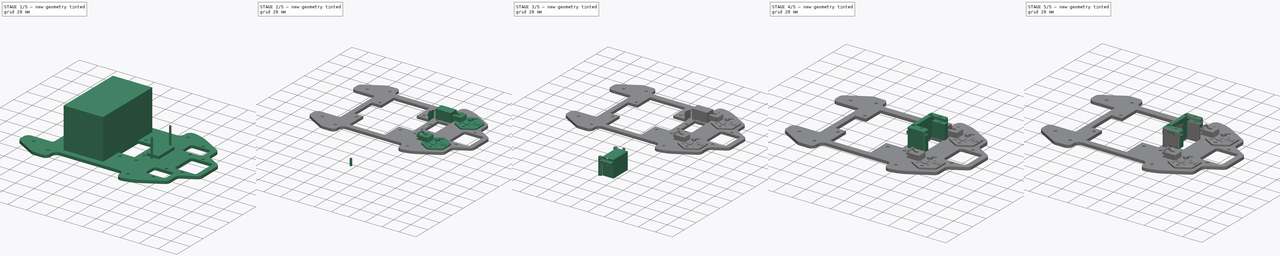
[diagram: build sequence overview — one tinted view per stage of 5, left to right]
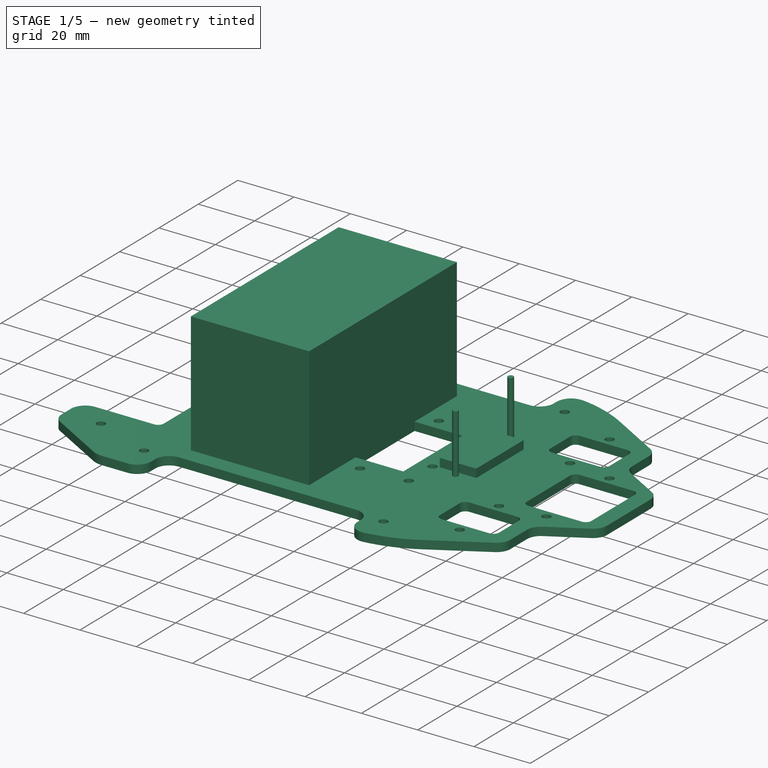
[diagram: stage 1 of 5 — iso view after this stage's code; geometry added in this stage tinted green]
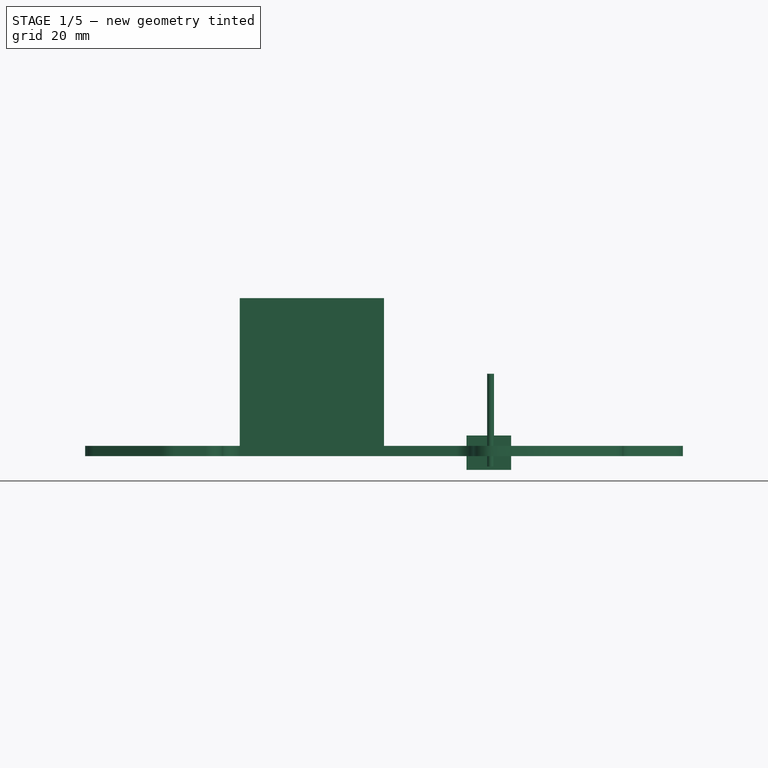
[diagram: stage 1 of 5 — front view after this stage's code; geometry added in this stage tinted green]
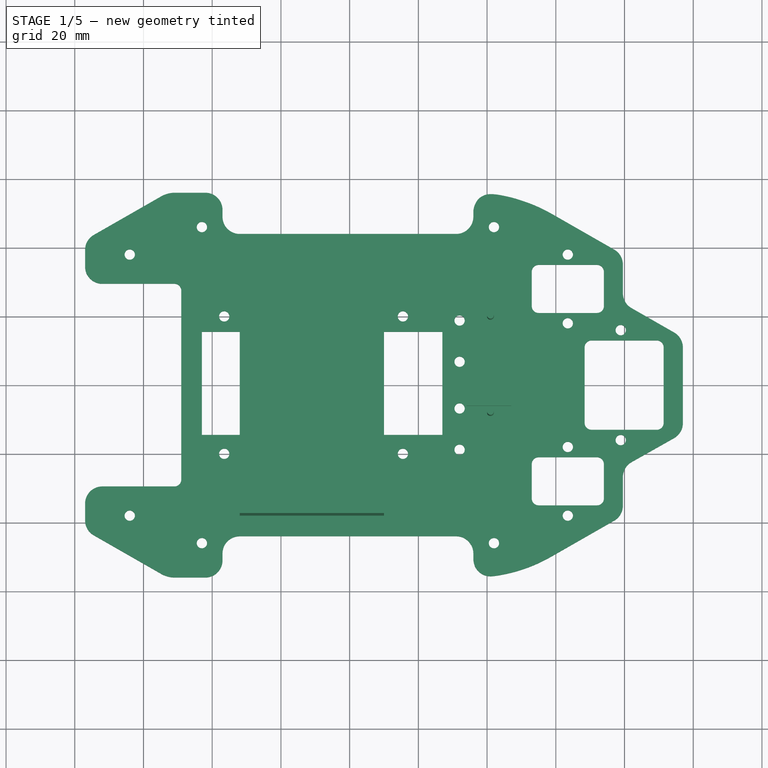
[diagram: stage 1 of 5 — top view after this stage's code; geometry added in this stage tinted green]
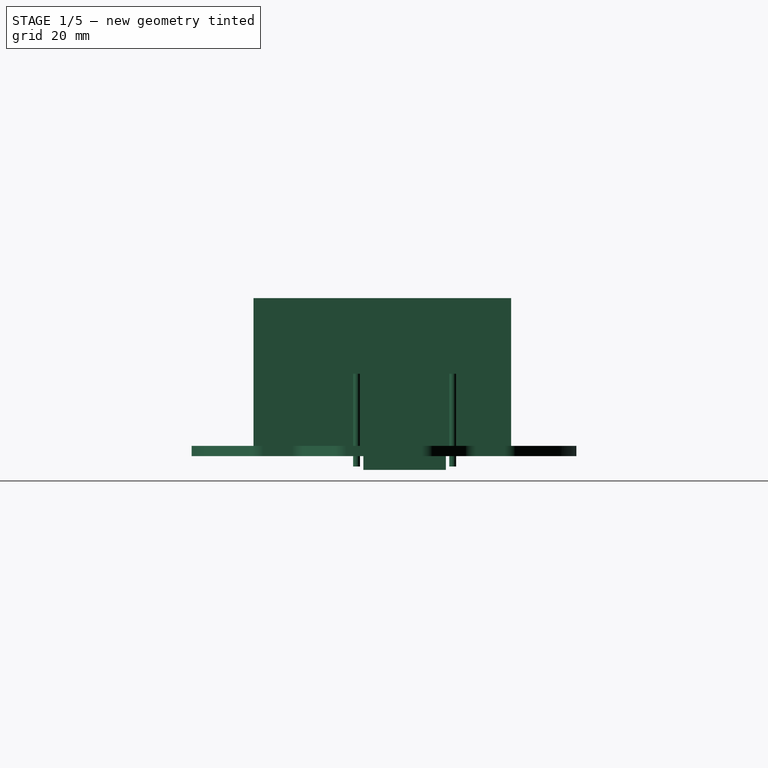
[diagram: stage 1 of 5 — right view after this stage's code; geometry added in this stage tinted green]
FCSTD DOCUMENT  (FreeCAD 0.16R6692 (Git))
Label: Base y cuerpo cortados MiniServo
License: All rights reserved
LicenseURL: http://es.wikipedia.org/wiki/Todos_los_derechos_reservados
objects: Part::Feature×31, Part::Box×9, Part::Cut×9, Part::Cylinder×6, Part::MultiFuse×6, Sketcher::SketchObject×3, Part::Fillet×2, PartDesign::Pocket×2, App::DocumentObjectGroup×2, PartDesign::Pad×1
note: 72 computed .brp shape members not serialized (recipe doc carries the construction recipe); baked Part::Feature solids carry a one-line shape summary decoded from their .brp

FEATURE [Part::Feature] Part__Feature210  label="BASE_FINAL"
  shape: bbox 217.5 x 140 x 48.35 mm, 110 faces (baked)
FEATURE [Part::Box] Box  label="Cubo Y corte base"
  Height = 46
  Length = 42
  Placement = pos=(-12,-38,0) rot=(0,0,1;0rad)
  Width = 75
FEATURE [Part::Box] Box005  label="Cubo X corte base"
  Height = 49
  Length = 70
  Placement = pos=(-23,-14.5,0) rot=(0,0,1;0rad)
  Width = 30
FEATURE [Part::Cut] Cut  label="base"
  Base = -> Part__Feature210
  Tool = -> Box005
FEATURE [Part::Box] Box040  label="Cubo"
  Height = 10
  Length = 13
  Placement = pos=(54,-6,-4) rot=(0,0,1;0rad)
  Width = 24
FEATURE [Part::Cylinder] Cylinder  label="Cilindro"
  Angle = 360
  Height = 27
  Placement = pos=(61,20,-3) rot=(0,0,1;0rad)
  Radius = 1
FEATURE [App::DocumentObjectGroup] Grupo  label="Servo"
  Group = -> [Cut056]
FEATURE [Part::Cylinder] Cylinder038  label="Cilindro001"
  Angle = 360
  Height = 27
  Placement = pos=(61,-8,-3) rot=(0,0,1;0rad)
  Radius = 1
FEATURE [Part::MultiFuse] Fusion  label="HuecoMiniServo"
  Shapes = -> [Cylinder038,Box040,Cylinder]
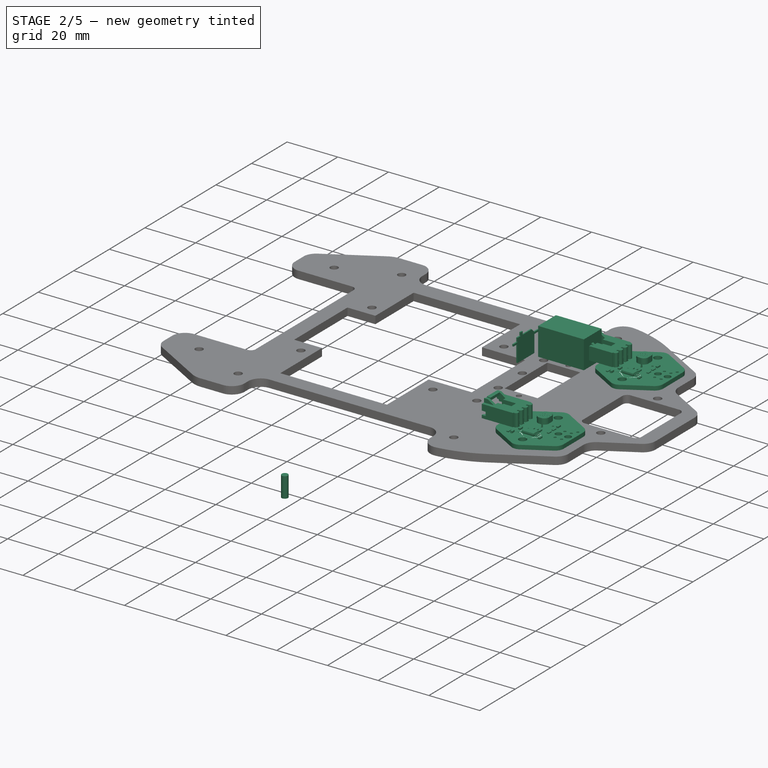
[diagram: stage 2 of 5 — iso view after this stage's code; geometry added in this stage tinted green]
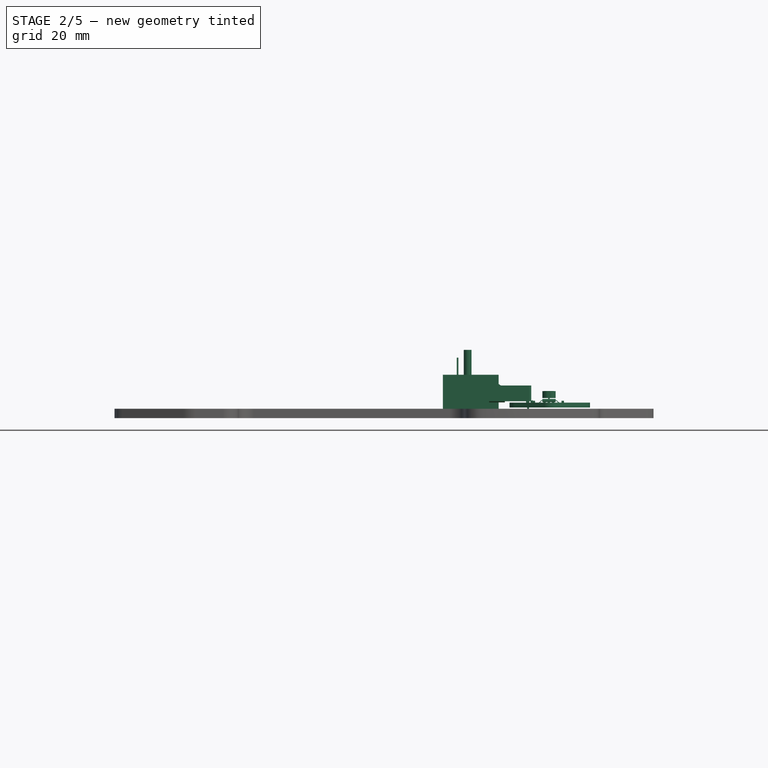
[diagram: stage 2 of 5 — front view after this stage's code; geometry added in this stage tinted green]
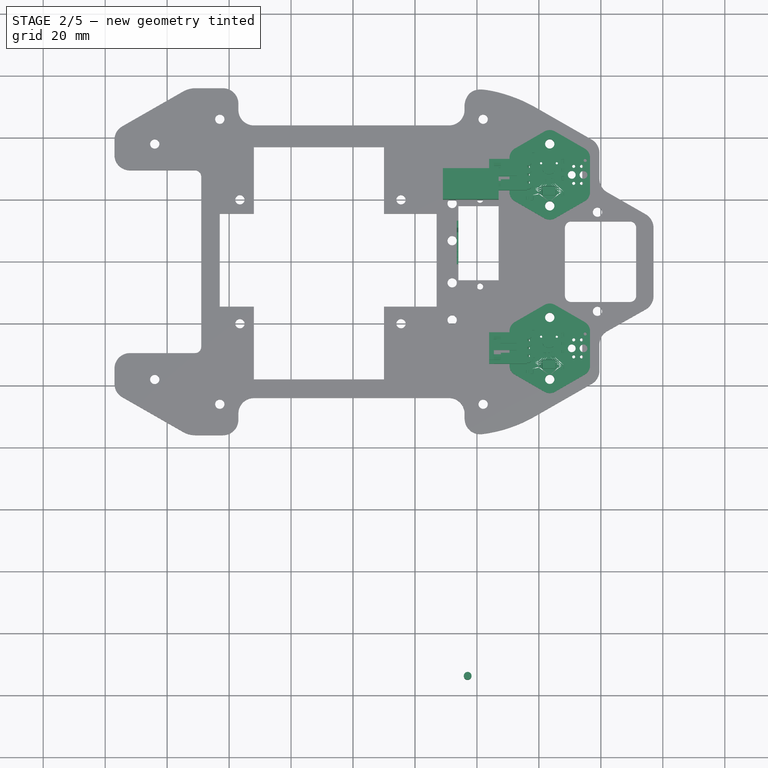
[diagram: stage 2 of 5 — top view after this stage's code; geometry added in this stage tinted green]
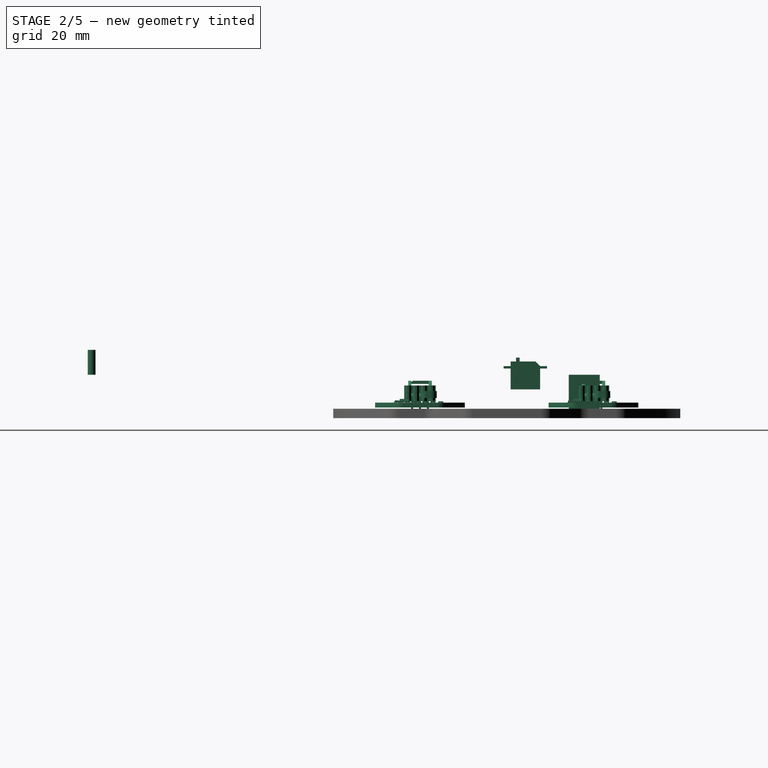
[diagram: stage 2 of 5 — right view after this stage's code; geometry added in this stage tinted green]
FEATURE [Part::Cut] Cut048016002  label="Base Cortada"
  Base = -> Cut
  Tool = -> Box
FEATURE [Part::Cylinder] Cylinder037  label="Taladro_Miniservo_1"
  Angle = 360
  Height = 8
  Placement = pos=(57,-134,14) rot=(0,0,1;0rad)
  Radius = 1.25
FEATURE [Part::Box] Box039  label="Hueco_Conector_Miniservo"
  Height = 11
  Length = 18
  Placement = pos=(49,20,3) rot=(0,0,1;0rad)
  Width = 10
FEATURE [Sketcher::SketchObject] Sketch046  label="servo-doc-sketch002"
  Placement = pos=(53.5,6,2.5) rot=(0.57735,0.57735,0.57735;2.0944rad)
  sketch-geometry (16):
    g0: LineSegment StartX=4.75 StartY=6.75 StartZ=0 EndX=-4.75 EndY=6.75 EndZ=0
    g1: LineSegment StartX=-4.75 StartY=6.75 StartZ=0 EndX=-4.75 EndY=13.5 EndZ=0
    g2: LineSegment StartX=-4.75 StartY=13.5 StartZ=0 EndX=-7 EndY=13.5 EndZ=0
    g3: LineSegment StartX=-7 StartY=13.5 StartZ=0 EndX=-7 EndY=14.25 EndZ=0
    g4: LineSegment StartX=-3 StartY=15.75 StartZ=0 EndX=-3 EndY=17 EndZ=0
    g5: LineSegment StartX=-3 StartY=17 StartZ=0 EndX=-1.85 EndY=17 EndZ=0
    g6: LineSegment StartX=-1.85 StartY=17 StartZ=0 EndX=-1.85 EndY=15.75 EndZ=0
    g7: LineSegment StartX=-1.85 StartY=15.75 StartZ=0 EndX=3.25 EndY=15.75 EndZ=0
    g8: LineSegment StartX=3.25 StartY=15.75 StartZ=0 EndX=4.75 EndY=14.25 EndZ=0
    g9: LineSegment StartX=4.75 StartY=14.25 StartZ=0 EndX=7 EndY=14.25 EndZ=0
    g10: LineSegment StartX=7 StartY=14.25 StartZ=0 EndX=7 EndY=13.5 EndZ=0
    g11: LineSegment StartX=7 StartY=13.5 StartZ=0 EndX=4.75 EndY=13.5 EndZ=0
    g12: LineSegment StartX=4.75 StartY=13.5 StartZ=0 EndX=4.75 EndY=6.75 EndZ=0
    g13: LineSegment StartX=-7 StartY=14.25 StartZ=0 EndX=-4.75 EndY=14.25 EndZ=0
    g14: LineSegment StartX=-4.75 StartY=14.25 StartZ=0 EndX=-4.75 EndY=15.75 EndZ=0
    g15: LineSegment StartX=-4.75 StartY=15.75 StartZ=0 EndX=-3 EndY=15.75 EndZ=0
  constraints (47):
    c: Horizontal(g0)
    c: Coincident(g0,g1)
    c: Vertical(g1)
    c: Coincident(g1,g2)
    c: Horizontal(g2)
    c: Coincident(g2,g3)
    c: Coincident(g4,g5)
    c: Horizontal(g5)
    c: Coincident(g5,g6)
    c: Vertical(g6)
    c: Coincident(g6,g7)
    c: Horizontal(g7)
    c: Coincident(g7,g8)
    c: Coincident(g8,g9)
    c: Horizontal(g9)
    c: Coincident(g9,g10)
    c: Coincident(g10,g11)
    c: Horizontal(g11)
    c: Coincident(g11,g12)
    c: Coincident(g12,g0)
    c: Vertical(g12)
    c: Symmetric(g0,g0,g-2)
    c: Vertical(g3)
    c: Coincident(g3,g13)
    c: Horizontal(g13)
    c: Coincident(g13,g14)
    c: Coincident(g14,g15)
    c: Coincident(g15,g4)
    c: Horizontal(g15)
    c: Symmetric(g1,g11,g-2)
    c: Symmetric(g3,g9,g-2)
    c: PointOnObject(g4,g7)
    c: Vertical(g4)
    c: Vertical(g14)
    c: PointOnObject(g13,g1)
    c: PointOnObject(g8,g12)
    c: Vertical(g10)
    c: Angle(g8,g-1) = 0.785398
    c: DistanceX(g0) = -9.5
    c: DistanceY(g14,g0) = -9
    c: DistanceY(g14) = 1.5
    c: DistanceX(g2) = -2.25
    c: DistanceY(g3) = 0.75
    c: DistanceY(g6) = -1.25
    c: DistanceX(g5) = 1.15
    c: DistanceX(g15) = 1.75
    c: DistanceY(g-1,g0) = 6.75
FEATURE [PartDesign::Pad] Pad015
  Length = 0.5
  Length2 = 100
  Placement = pos=(53.5,6,2.5) rot=(0.57735,0.57735,0.57735;2.0944rad)
  Sketch = -> Sketch046
  Type = 0
FEATURE [Part::Feature] Part__Feature149  label="R6bqZUM_bloqs_Light002"
  Placement = pos=(1.91,-1.7,0) rot=(0,0,1;3.14159rad)
  shape: bbox 1.6 x 0.8 x 0.4 mm, 36 faces (baked)
FEATURE [Part::Feature] Part__Feature150  label="RfbbqZUM_bloqs_Light002"
  Placement = pos=(7.49,-7.22,0) rot=(0,0,1;0rad)
  shape: bbox 1.6 x 0.8 x 0.4 mm, 36 faces (baked)
FEATURE [Part::Feature] Part__Feature151  label="J1bqZUM_bloqs_Light002"
  Placement = pos=(-4.08502e-05,-19.573,2.98) rot=(1,0,0;1.5708rad)
  shape: bbox 10.16 x 13.59 x 10.29 mm, 129 faces (baked)
FEATURE [Part::Feature] Part__Feature152  label="R2bqZUM_bloqs_Light002"
  Placement = pos=(-1.59,4.2,0) rot=(0,0,1;3.14159rad)
  shape: bbox 1.6 x 0.8 x 0.4 mm, 36 faces (baked)
FEATURE [Part::Feature] Part__Feature153  label="R8bqZUM_bloqs_Light"
  Placement = pos=(-8.39353,3.11612,1.5) rot=(0,0,1;3.14159rad)
  shape: bbox 5.212 x 4.302 x 4.742 mm, 74 faces (baked)
FEATURE [Part::Feature] Part__Feature154  label="C4bqZUM_bloqs_Light002"
  Placement = pos=(6.21,4.2,0) rot=(0,0,1;3.14159rad)
  shape: bbox 1.6 x 0.8 x 0.6 mm, 44 faces (baked)
FEATURE [Part::Feature] Part__Feature155  label="U2bqZUM_bloqs_Light002"
  Placement = pos=(5.10492,-0.244957,0) rot=(0.57735,0.57735,0.57735;2.0944rad)
  shape: bbox 3 x 6.456 x 1.2 mm, 129 faces (baked)
FEATURE [Part::Feature] Part__Feature156  label="R5bqZUM_bloqs_Light002"
  Placement = pos=(1.01,4.2,0) rot=(0,0,1;3.14159rad)
  shape: bbox 1.6 x 0.8 x 0.4 mm, 36 faces (baked)
FEATURE [Part::Feature] Part__Feature157  label="C3bqZUM_bloqs_Light002"
  Placement = pos=(1.91,1.1,0) rot=(0,0,1;3.14159rad)
  shape: bbox 1.6 x 0.8 x 0.6 mm, 44 faces (baked)
FEATURE [Part::Feature] Part__Feature158  label="C2bqZUM_bloqs_Light002"
  Placement = pos=(-4.21,4.2,0) rot=(0,0,1;0rad)
  shape: bbox 1.6 x 0.8 x 0.6 mm, 44 faces (baked)
FEATURE [Part::Feature] Part__Feature159  label="R7bqZUM_bloqs_Light002"
  Placement = pos=(1.91,-0.3,0) rot=(0,0,1;3.14159rad)
  shape: bbox 1.6 x 0.8 x 0.4 mm, 36 faces (baked)
FEATURE [Part::Feature] Part__Feature160  label="PCB005"
  Placement = pos=(0,0,-1.6) rot=(0,0,1;0rad)
  shape: bbox 28.95 x 26.02 x 1.6 mm, 83 faces (baked)
FEATURE [Part::Feature] Part__Feature161  label="C1bqZUM_bloqs_Light002"
  Placement = pos=(3.91,-5.1,0) rot=(0,0,1;3.14159rad)
  shape: bbox 1.6 x 0.8 x 0.6 mm, 44 faces (baked)
FEATURE [Part::Feature] Part__Feature162  label="D2bqZUM_bloqs_Light002"
  Placement = pos=(7.50008,-5.79987,0) rot=(0,0,1;3.14159rad)
  shape: bbox 1.83 x 0.8489 x 0.71 mm, 32 faces (baked)
FEATURE [Part::Feature] Part__Feature163  label="R9bqZUM_bloqs_Light002"
  Placement = pos=(-6.69,-5.3,0) rot=(0,0,1;3.14159rad)
  shape: bbox 1.6 x 0.8 x 0.4 mm, 36 faces (baked)
FEATURE [Part::MultiFuse] Fusion028  label="Sensor_LDR1"
  Placement = pos=(83.5,-28,5) rot=(0,0,-1;1.5708rad)
  Shapes = -> [Part__Feature160,Part__Feature156,Part__Feature153,Part__Feature159,Part__Feature152,Part__Feature161,Part__Feature162,Part__Feature163,Part__Feature155,Part__Feature149,Part__Feature154,Part__Feature158,Part__Feature151,Part__Feature157,Part__Feature150]
FEATURE [Part::Feature] Part__Feature164  label="J1bqZUM_bloqs_Light003"
  Placement = pos=(-4.08502e-05,-19.573,2.98) rot=(1,0,0;1.5708rad)
  shape: bbox 10.16 x 13.59 x 10.29 mm, 129 faces (baked)
FEATURE [Part::Feature] Part__Feature165  label="R2bqZUM_bloqs_Light003"
  Placement = pos=(-1.59,4.2,0) rot=(0,0,1;3.14159rad)
  shape: bbox 1.6 x 0.8 x 0.4 mm, 36 faces (baked)
FEATURE [Part::Feature] Part__Feature166  label="R8bqZUM_bloqs_Light001"
  Placement = pos=(-8.39353,3.11612,1.5) rot=(0,0,1;3.14159rad)
  shape: bbox 5.212 x 4.302 x 4.742 mm, 74 faces (baked)
FEATURE [Part::Feature] Part__Feature167  label="C1bqZUM_bloqs_Light003"
  Placement = pos=(3.91,-5.1,0) rot=(0,0,1;3.14159rad)
  shape: bbox 1.6 x 0.8 x 0.6 mm, 44 faces (baked)
FEATURE [Part::Feature] Part__Feature168  label="RfbbqZUM_bloqs_Light003"
  Placement = pos=(7.49,-7.22,0) rot=(0,0,1;0rad)
  shape: bbox 1.6 x 0.8 x 0.4 mm, 36 faces (baked)
FEATURE [Part::Feature] Part__Feature169  label="C2bqZUM_bloqs_Light003"
  Placement = pos=(-4.21,4.2,0) rot=(0,0,1;0rad)
  shape: bbox 1.6 x 0.8 x 0.6 mm, 44 faces (baked)
FEATURE [Part::Feature] Part__Feature170  label="PCB006"
  Placement = pos=(0,0,-1.6) rot=(0,0,1;0rad)
  shape: bbox 28.95 x 26.02 x 1.6 mm, 83 faces (baked)
FEATURE [Part::Feature] Part__Feature171  label="R7bqZUM_bloqs_Light003"
  Placement = pos=(1.91,-0.3,0) rot=(0,0,1;3.14159rad)
  shape: bbox 1.6 x 0.8 x 0.4 mm, 36 faces (baked)
FEATURE [Part::Feature] Part__Feature172  label="R5bqZUM_bloqs_Light003"
  Placement = pos=(1.01,4.2,0) rot=(0,0,1;3.14159rad)
  shape: bbox 1.6 x 0.8 x 0.4 mm, 36 faces (baked)
FEATURE [Part::Feature] Part__Feature173  label="C4bqZUM_bloqs_Light003"
  Placement = pos=(6.21,4.2,0) rot=(0,0,1;3.14159rad)
  shape: bbox 1.6 x 0.8 x 0.6 mm, 44 faces (baked)
FEATURE [Part::Feature] Part__Feature174  label="R6bqZUM_bloqs_Light003"
  Placement = pos=(1.91,-1.7,0) rot=(0,0,1;3.14159rad)
  shape: bbox 1.6 x 0.8 x 0.4 mm, 36 faces (baked)
FEATURE [Part::Feature] Part__Feature175  label="U2bqZUM_bloqs_Light003"
  Placement = pos=(5.10492,-0.244957,0) rot=(0.57735,0.57735,0.57735;2.0944rad)
  shape: bbox 3 x 6.456 x 1.2 mm, 129 faces (baked)
FEATURE [Part::Feature] Part__Feature176  label="R9bqZUM_bloqs_Light003"
  Placement = pos=(-6.69,-5.3,0) rot=(0,0,1;3.14159rad)
  shape: bbox 1.6 x 0.8 x 0.4 mm, 36 faces (baked)
FEATURE [Part::Feature] Part__Feature177  label="C3bqZUM_bloqs_Light003"
  Placement = pos=(1.91,1.1,0) rot=(0,0,1;3.14159rad)
  shape: bbox 1.6 x 0.8 x 0.6 mm, 44 faces (baked)
FEATURE [Part::Feature] Part__Feature178  label="D2bqZUM_bloqs_Light003"
  Placement = pos=(7.50008,-5.79987,0) rot=(0,0,1;3.14159rad)
  shape: bbox 1.83 x 0.8489 x 0.71 mm, 32 faces (baked)
FEATURE [Part::MultiFuse] Fusion029  label="Sensor_LDR2"
  Placement = pos=(83.5,28,5) rot=(0,0,-1;1.5708rad)
  Shapes = -> [Part__Feature170,Part__Feature172,Part__Feature166,Part__Feature171,Part__Feature165,Part__Feature167,Part__Feature178,Part__Feature176,Part__Feature175,Part__Feature174,Part__Feature173,Part__Feature169,Part__Feature164,Part__Feature177,Part__Feature168]
FEATURE [App::DocumentObjectGroup] Grupo001  label="Huecos LDR"
  Group = -> [Fusion029,Fusion028]
FEATURE [Part::Cut] Cut048016003  label="BaseCortadaHuecoServo"
  Base = -> Cut048016002
  Tool = -> Fusion
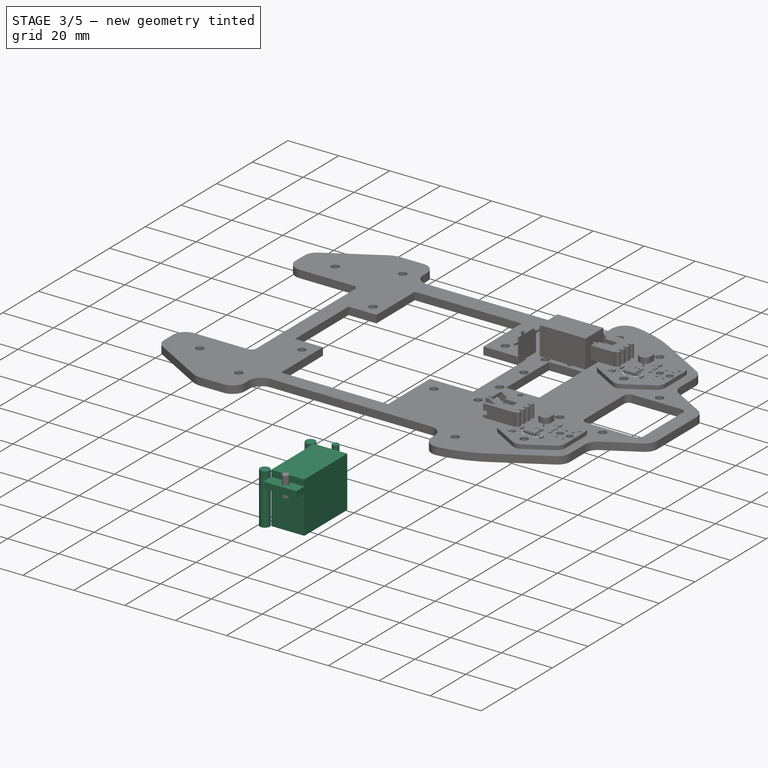
[diagram: stage 3 of 5 — iso view after this stage's code; geometry added in this stage tinted green]
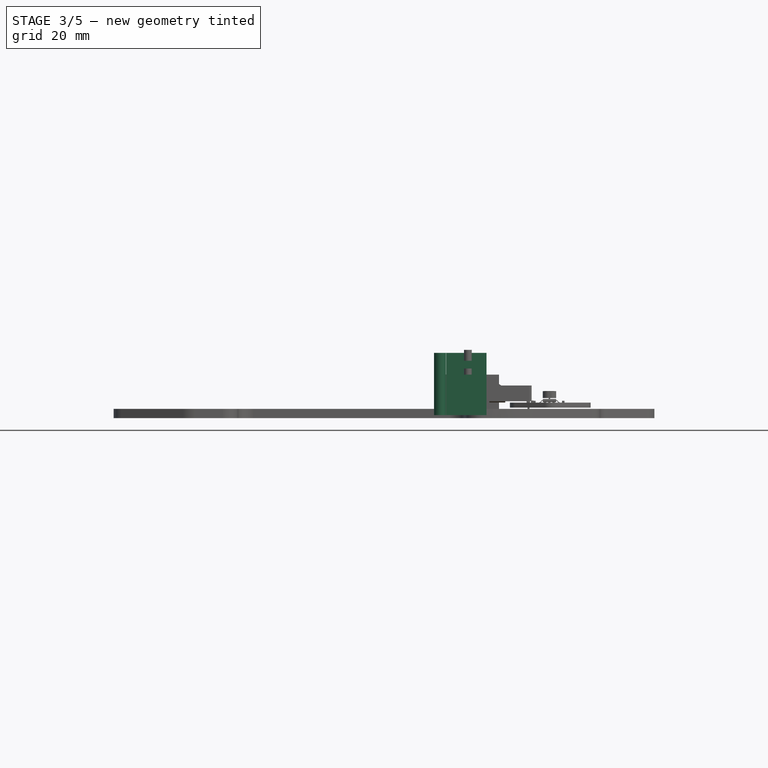
[diagram: stage 3 of 5 — front view after this stage's code; geometry added in this stage tinted green]
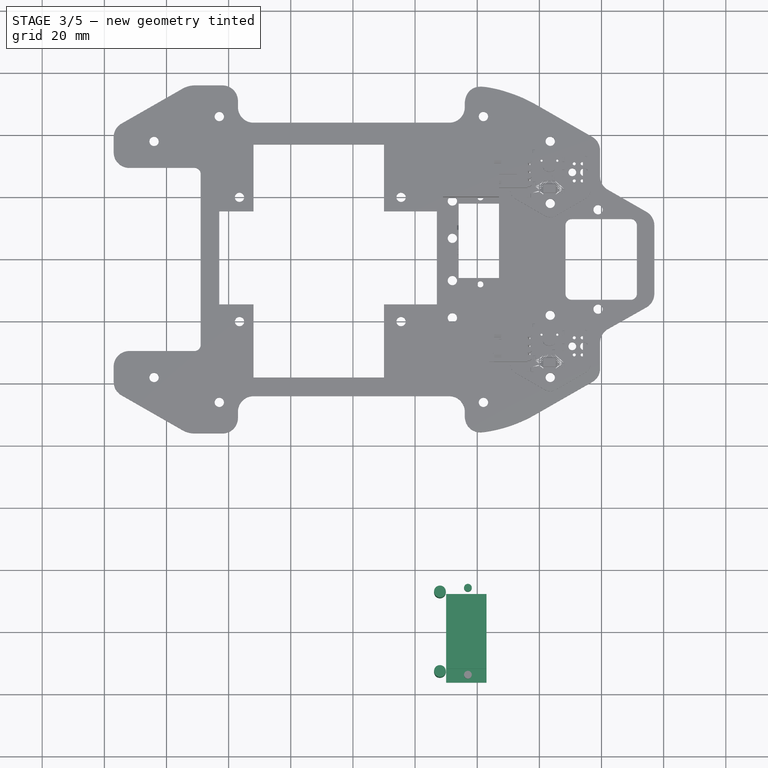
[diagram: stage 3 of 5 — top view after this stage's code; geometry added in this stage tinted green]
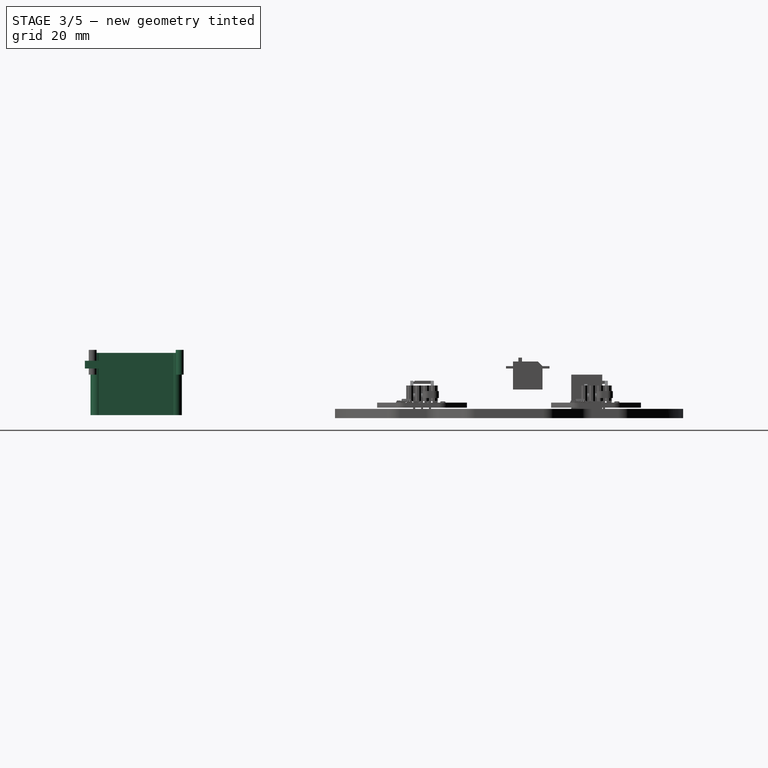
[diagram: stage 3 of 5 — right view after this stage's code; geometry added in this stage tinted green]
FEATURE [Part::Cylinder] Cylinder014  label="Orificio_tornilloM3_Miniservo_1"
  Angle = 360
  Height = 20
  Placement = pos=(48,-132.8,1) rot=(0,0,1;0rad)
  Radius = 1.9
FEATURE [Part::Cylinder] Cylinder015  label="Orificio_tornilloM3_Miniservo_2"
  Angle = 360
  Height = 20
  Placement = pos=(48,-107.2,1) rot=(0,0,1;0rad)
  Radius = 1.9
FEATURE [Part::Box] Box014  label="Brazo_Miniservo_1"
  Height = 2.5
  Length = 13
  Placement = pos=(50,-136.5,16) rot=(0,0,1;0rad)
  Width = 4.9
FEATURE [Part::Box] Box035  label="Hueco_Miniservo"
  Height = 20
  Length = 13
  Placement = pos=(50,-132.1,1) rot=(0,0,1;0rad)
  Width = 24.1
FEATURE [Part::MultiFuse] Fusion035  label="[Union]_Sujeta_miniservo_orificios_tornillos"
  Shapes = -> [Cylinder015,Cylinder014]
FEATURE [Part::Cylinder] Cylinder036  label="Taladro_Miniservo_2"
  Angle = 360
  Height = 8
  Placement = pos=(57,-106,14) rot=(0,0,1;0rad)
  Radius = 1.25
FEATURE [Part::MultiFuse] Fusion036  label="[Union]Sujeta_Miniservo_Taladros"
  Shapes = -> [Cylinder037,Cylinder036]
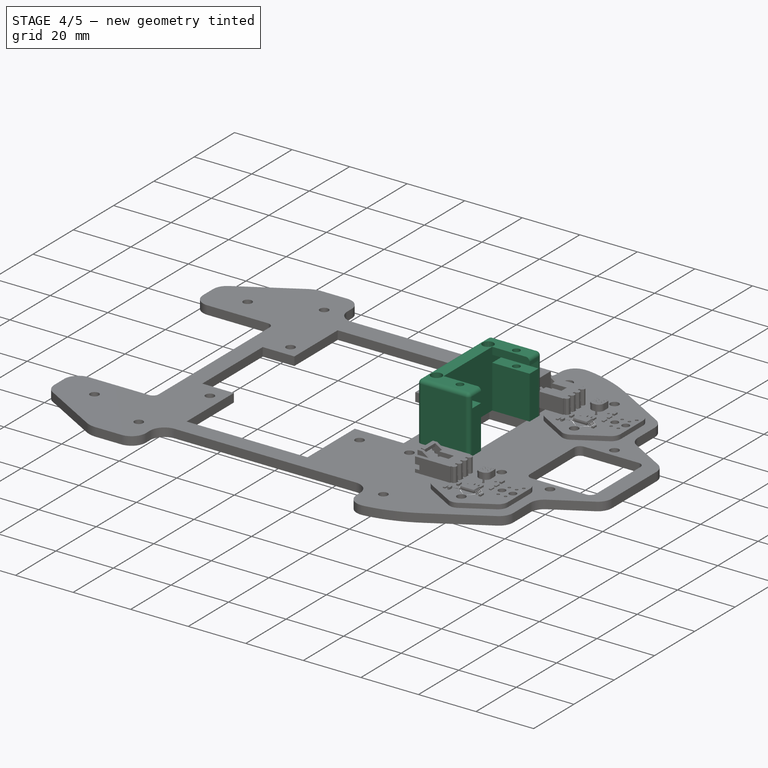
[diagram: stage 4 of 5 — iso view after this stage's code; geometry added in this stage tinted green]
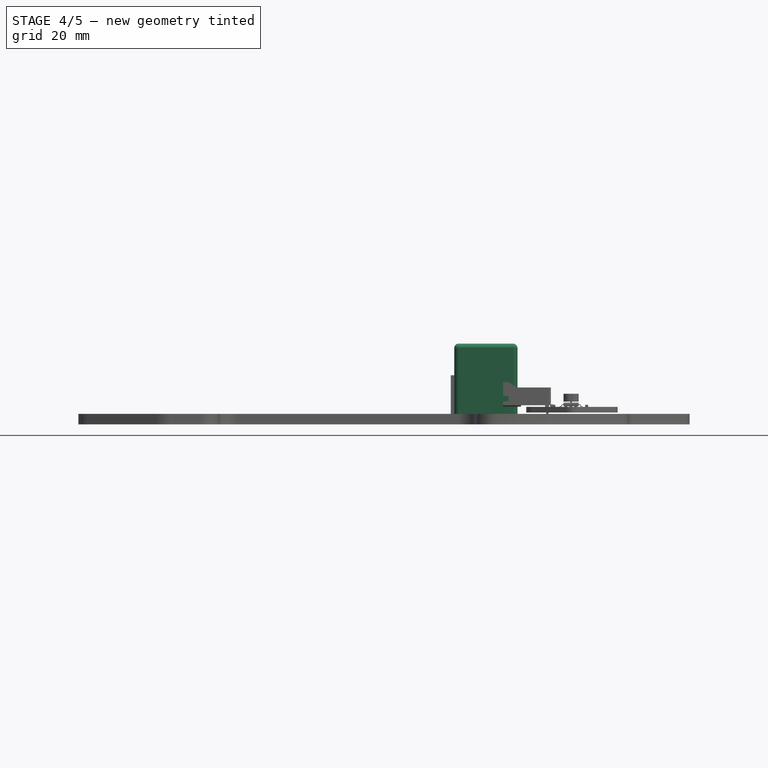
[diagram: stage 4 of 5 — front view after this stage's code; geometry added in this stage tinted green]
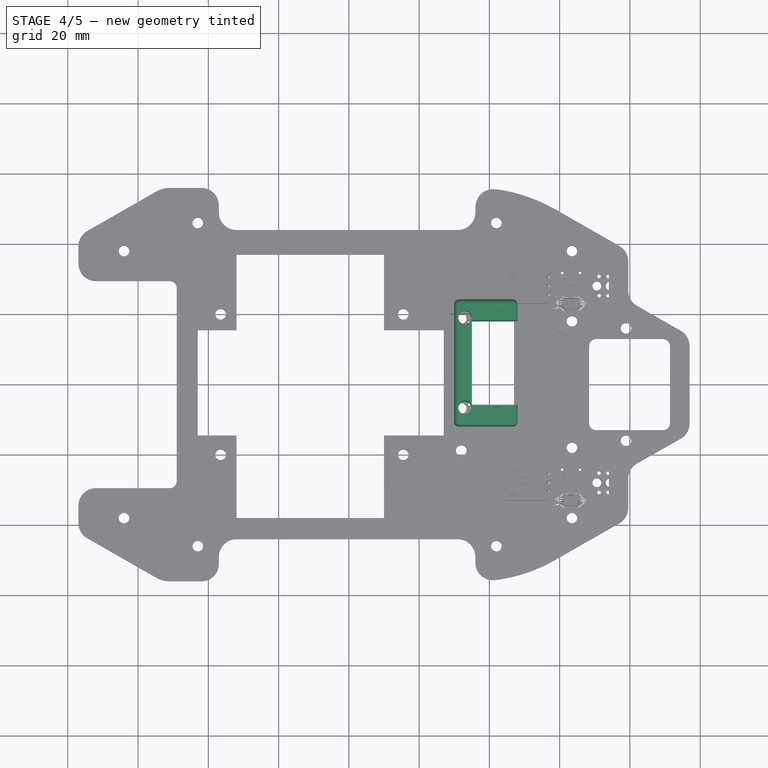
[diagram: stage 4 of 5 — top view after this stage's code; geometry added in this stage tinted green]
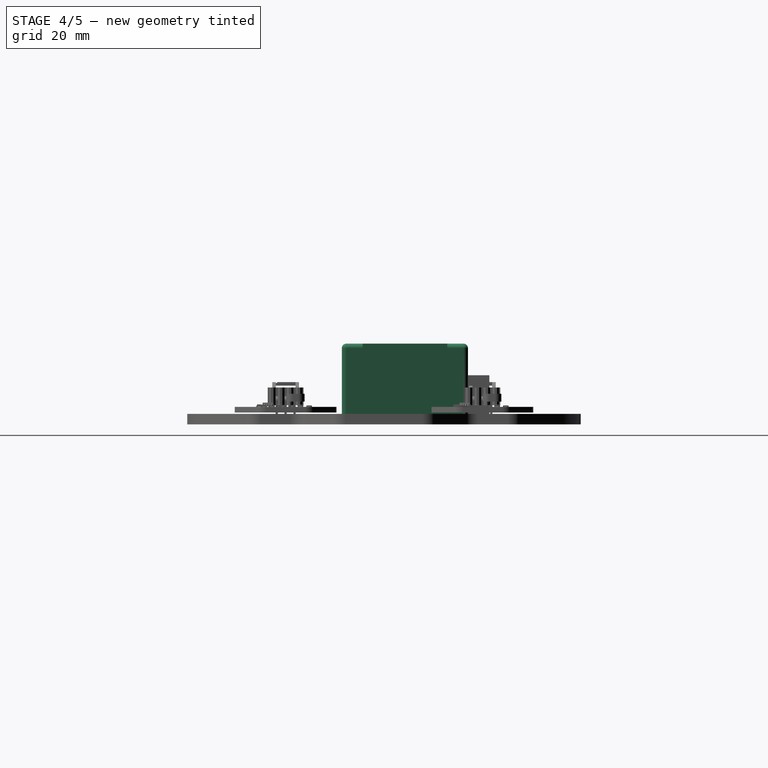
[diagram: stage 4 of 5 — right view after this stage's code; geometry added in this stage tinted green]
FEATURE [Part::Box] Box015  label="Brazo_Miniservo_2"
  Height = 2.5
  Length = 13
  Placement = pos=(50,-108.5,16) rot=(0,0,1;0rad)
  Width = 4.9
FEATURE [Part::Box] Box016  label="Sujeta_miniservo_cuerpo"
  Height = 20
  Length = 18
  Placement = pos=(45,-138,1) rot=(0,0,1;0rad)
  Width = 35.9
FEATURE [Part::MultiFuse] Fusion034  label="[Union]_Huecos_miniservo"
  Shapes = -> [Box014,Box015,Box035]
FEATURE [Part::Cut] Cut012  label="[Diferencia]Sujeta_Miniservo_Huecos"
  Base = -> Box016
  Tool = -> Fusion034
FEATURE [Part::Cut] Cut013  label="[Diferencia]_Sujeta_Miniservo_Tornillos"
  Base = -> Cut012
  Tool = -> Fusion035
FEATURE [Part::Cut] Cut016  label="[Diferencia]_Sujeta_Taladros"
  Base = -> Cut013
  Tool = -> Fusion036
FEATURE [Part::Fillet] Fillet008  label="[Redondeado]_Sujeta_Miniservo_Primer_Redondeo"
  Base = -> Cut016
  Edges = 9 edges r=1.3: [Edge1,Edge2,Edge3,Edge6,Edge7,Edge8,Edge9,Edge12,Edge19]
  Placement = pos=(5,126,2) rot=(0,0,1;0rad)
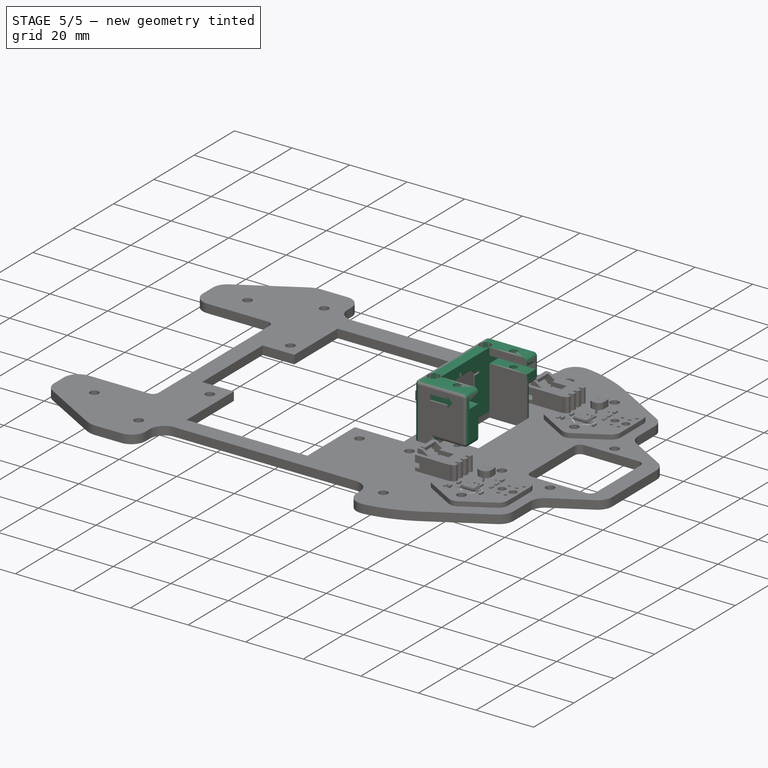
[diagram: stage 5 of 5 — iso view after this stage's code; geometry added in this stage tinted green]
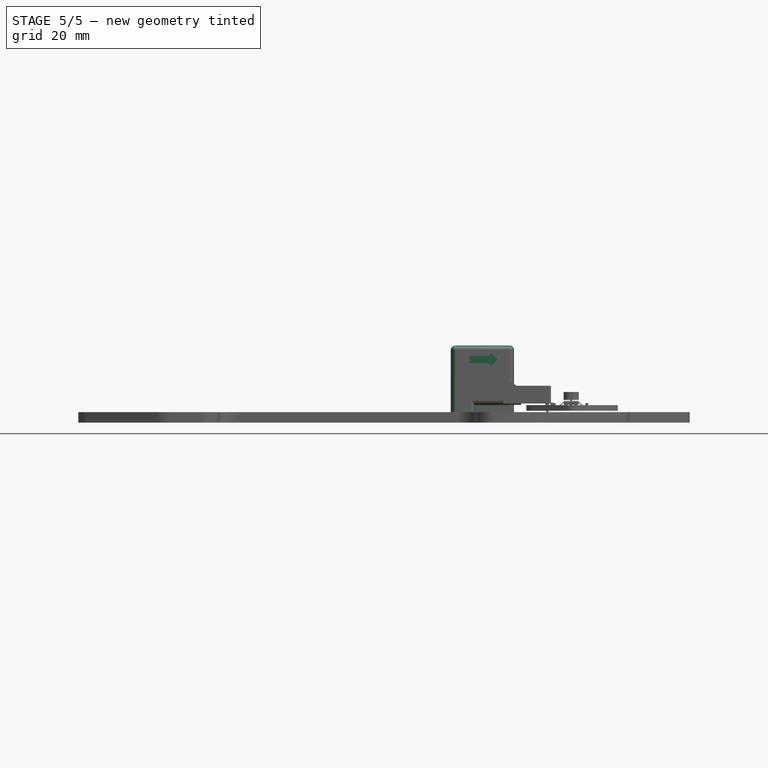
[diagram: stage 5 of 5 — front view after this stage's code; geometry added in this stage tinted green]
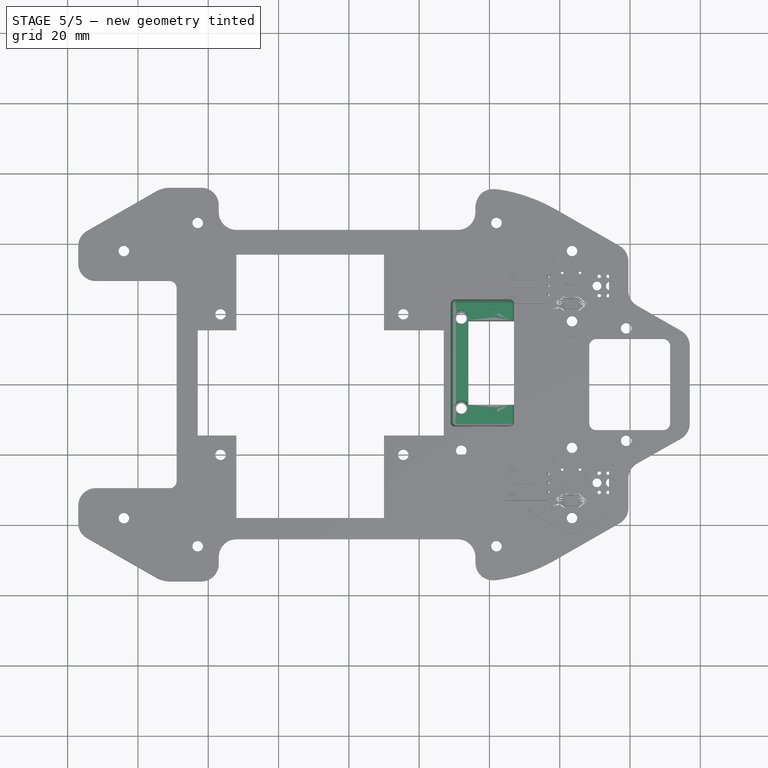
[diagram: stage 5 of 5 — top view after this stage's code; geometry added in this stage tinted green]
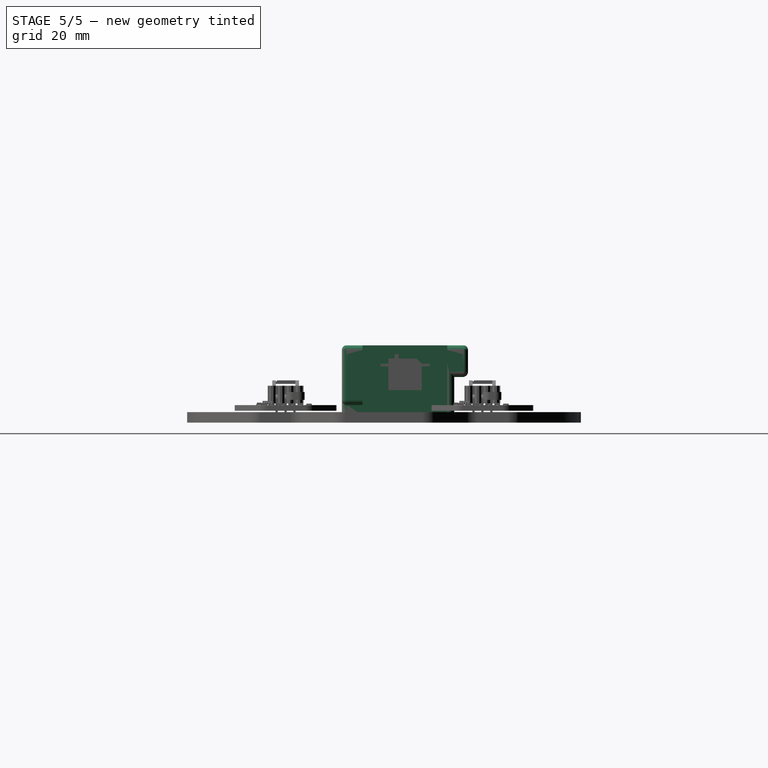
[diagram: stage 5 of 5 — right view after this stage's code; geometry added in this stage tinted green]
FEATURE [Part::Box] Box038  label="Hueco_Cables_Miniservo"
  Height = 10
  Length = 14
  Placement = pos=(57,-14,-4) rot=(0,0,1;0rad)
  Width = 10
FEATURE [Part::Cut] Cut017  label="[Diferencia]_Sujeta_Miniservo_Cables"
  Base = -> Fillet008
  Placement = pos=(-1,0,0) rot=(0,0,1;0rad)
  Tool = -> Box038
FEATURE [Part::Cut] Cut019  label="[Diferencia]_Sujeta_Hueco_Conector"
  Base = -> Cut017
  Tool = -> Box039
FEATURE [Part::Fillet] Fillet010  label="SUJETA_MINISERVO--[Redondeo]_Sujeta_Hueco_Conector"
  Base = -> Cut019
  Edges = 11 edges r=1.5: [Edge8,Edge9,Edge27,Edge28,Edge29,Edge30,Edge46,Edge47,Edge80,Edge97,Edge98]
  Placement = pos=(0,0,-1) rot=(0,0,1;0rad)
FEATURE [Sketcher::SketchObject] Sketch044
  ExternalGeometry = -> [Fillet010]
  Placement = pos=(0,-12,-1) rot=(1,0,0;1.5708rad)
  Support = -> Fillet010 [Face20]
  sketch-geometry (7):
    g0: LineSegment StartX=54.3 StartY=19.95 StartZ=0 EndX=54.3 EndY=17.95 EndZ=0
    g1: LineSegment StartX=54.3 StartY=17.95 StartZ=0 EndX=60.3 EndY=17.95 EndZ=0
    g2: LineSegment StartX=60.3 StartY=17.95 StartZ=0 EndX=60.3 EndY=16.95 EndZ=0
    g3: LineSegment StartX=60.3 StartY=16.95 StartZ=0 EndX=62.3 EndY=18.95 EndZ=0
    g4: LineSegment StartX=62.3 StartY=18.95 StartZ=0 EndX=60.3 EndY=20.95 EndZ=0
    g5: LineSegment StartX=60.3 StartY=20.95 StartZ=0 EndX=60.3 EndY=19.95 EndZ=0
    g6: LineSegment StartX=60.3 StartY=19.95 StartZ=0 EndX=54.3 EndY=19.95 EndZ=0
  constraints (21):
    c: Vertical(g0)
    c: Coincident(g0,g1)
    c: Horizontal(g1)
    c: Coincident(g1,g2)
    c: Vertical(g2)
    c: Coincident(g2,g3)
    c: Coincident(g3,g4)
    c: Coincident(g4,g5)
    c: Vertical(g5)
    c: Coincident(g5,g6)
    c: Coincident(g0,g6)
    c: Horizontal(g6)
    c: DistanceX(g6) = -6
    c: DistanceY(g0) = -2
    c: Equal(g4,g3)
    c: Equal(g5,g2)
    c: Equal(g1,g6)
    c: Angle(g4,g3) = 1.5708
    c: DistanceY(g2) = -1
    c: DistanceX(g-3,g0) = 4
    c: DistanceY(g-3,g0) = -1.75
FEATURE [PartDesign::Pocket] Pocket020
  Length = 0.5
  Placement = pos=(0,0,-1) rot=(0,0,1;0rad)
  Sketch = -> Sketch044
  Type = 0
FEATURE [Sketcher::SketchObject] Sketch045
  Placement = pos=(0,23.9,-1) rot=(0,0.707107,0.707107;3.14159rad)
  Support = -> Pocket020 [Face14]
  sketch-geometry (7):
    g0: LineSegment StartX=-60.3 StartY=19.95 StartZ=0 EndX=-54.3 EndY=19.95 EndZ=0
    g1: LineSegment StartX=-54.3 StartY=19.95 StartZ=0 EndX=-54.3 EndY=17.95 EndZ=0
    g2: LineSegment StartX=-54.3 StartY=17.95 StartZ=0 EndX=-60.3 EndY=17.95 EndZ=0
    g3: LineSegment StartX=-60.3 StartY=17.95 StartZ=0 EndX=-60.3 EndY=16.95 EndZ=0
    g4: LineSegment StartX=-60.3 StartY=16.95 StartZ=0 EndX=-62.3 EndY=18.95 EndZ=0
    g5: LineSegment StartX=-62.3 StartY=18.95 StartZ=0 EndX=-60.3 EndY=20.95 EndZ=0
    g6: LineSegment StartX=-60.3 StartY=20.95 StartZ=0 EndX=-60.3 EndY=19.95 EndZ=0
  constraints (19):
    c: Horizontal(g0)
    c: Coincident(g0,g1)
    c: Coincident(g1,g2)
    c: Horizontal(g2)
    c: Coincident(g2,g3)
    c: Coincident(g3,g4)
    c: Coincident(g4,g5)
    c: Coincident(g5,g6)
    c: Coincident(g6,g0)
    c: Equal(g5,g4)
    c: Angle(g4,g5) = 1.5708
    c: Vertical(g6)
    c: Vertical(g3)
    c: Equal(g2,g0)
    c: Vertical(g1)
    c: DistanceY(g6) = -1
    c: DistanceX(g0) = 6
    c: DistanceY(g1) = -2
    c: Equal(g3,g6)
FEATURE [PartDesign::Pocket] Pocket021  label="[Vaciado]Huella_flecha"
  Length = 0.5
  Placement = pos=(0,0,-1) rot=(0,0,1;0rad)
  Sketch = -> Sketch045
  Type = 0
FEATURE [Part::Cut] Cut056  label="SUJETA MINISERVO FINAL"
  Base = -> Pocket021
  Tool = -> Pad015
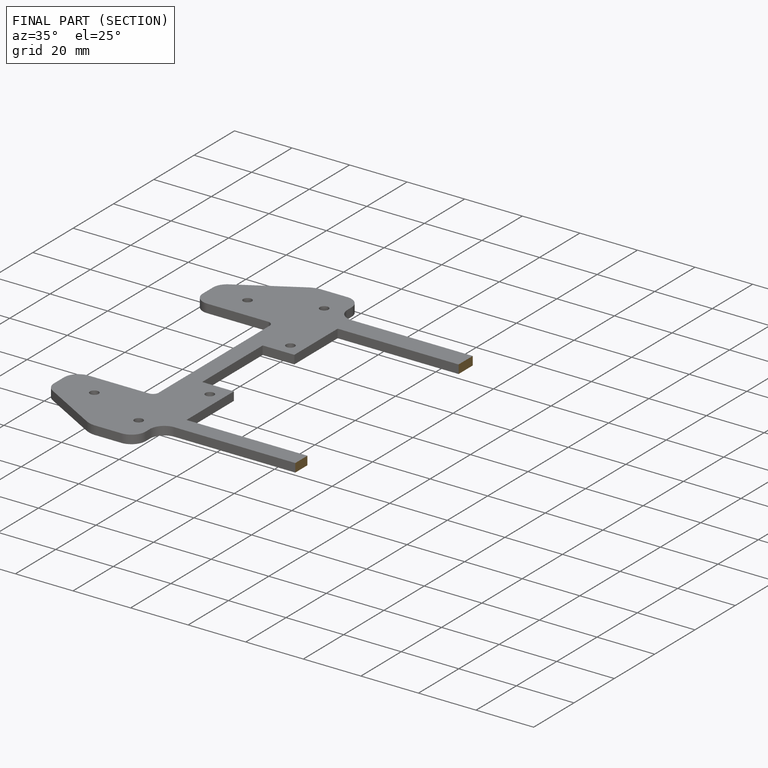
[diagram: finished part — half-section view (interior)]
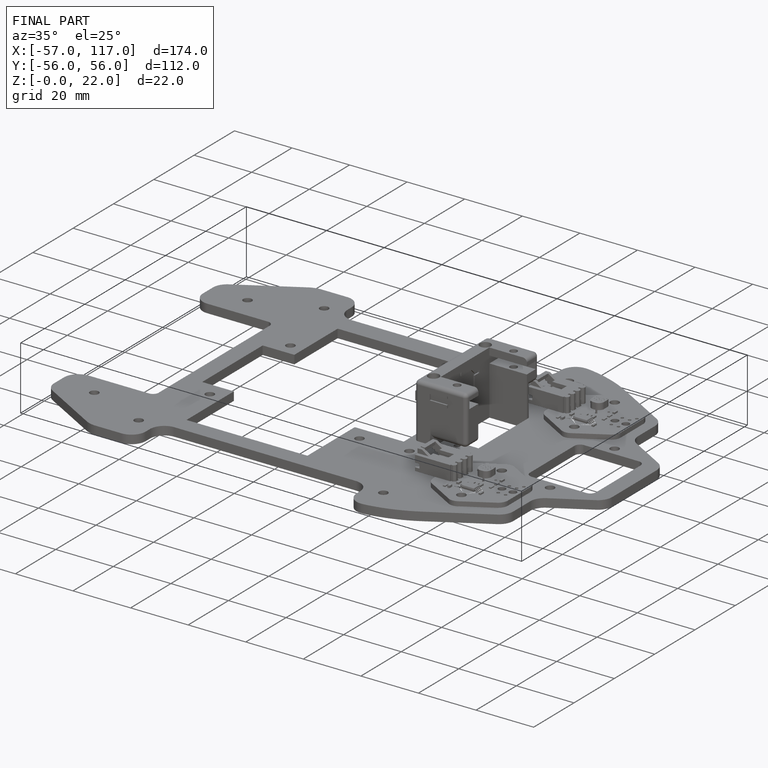
[diagram: finished part — iso view with bounding-box wireframe]
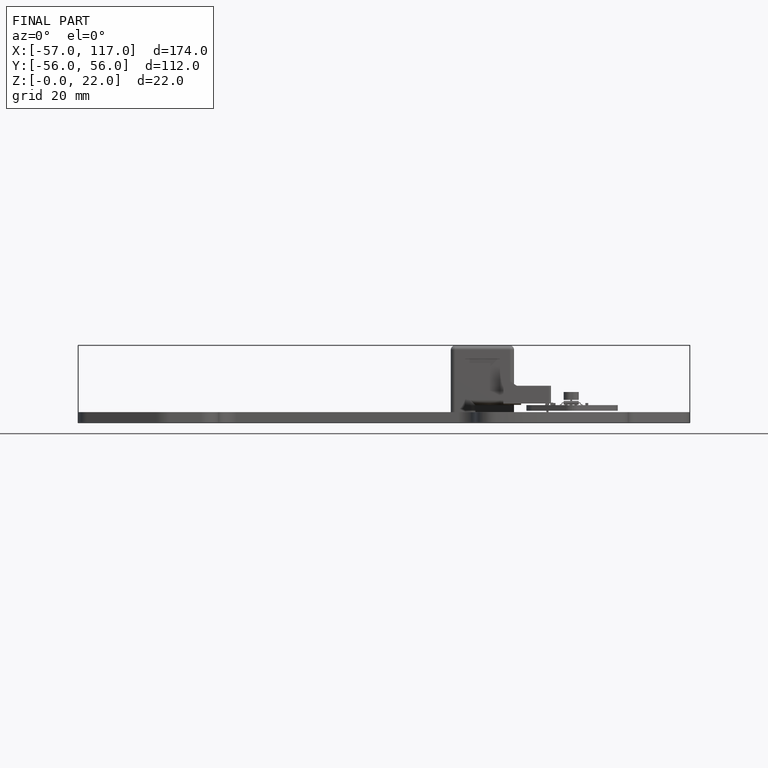
[diagram: finished part — front view with bounding-box wireframe]
